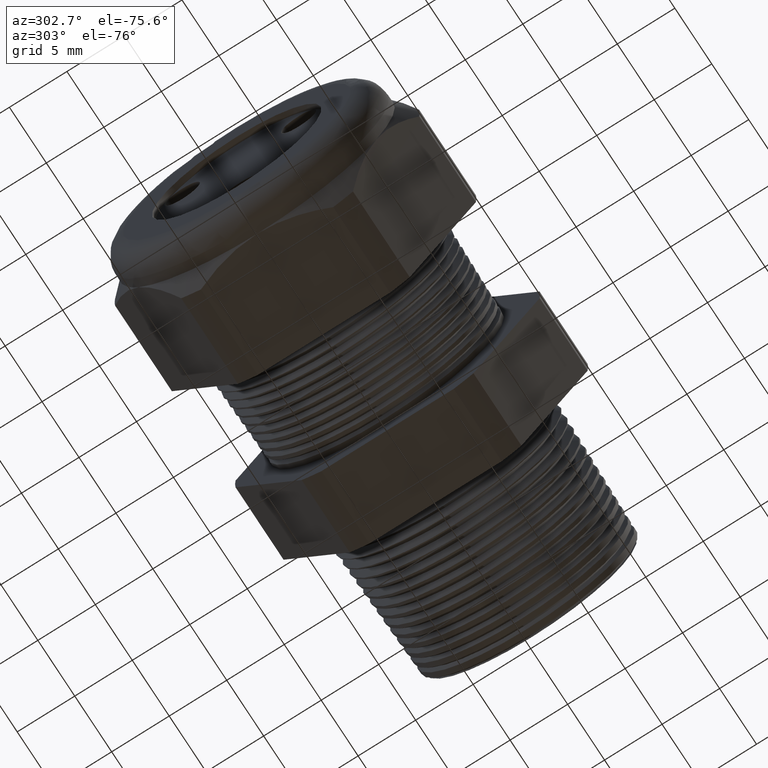
[diagram: clean part render]
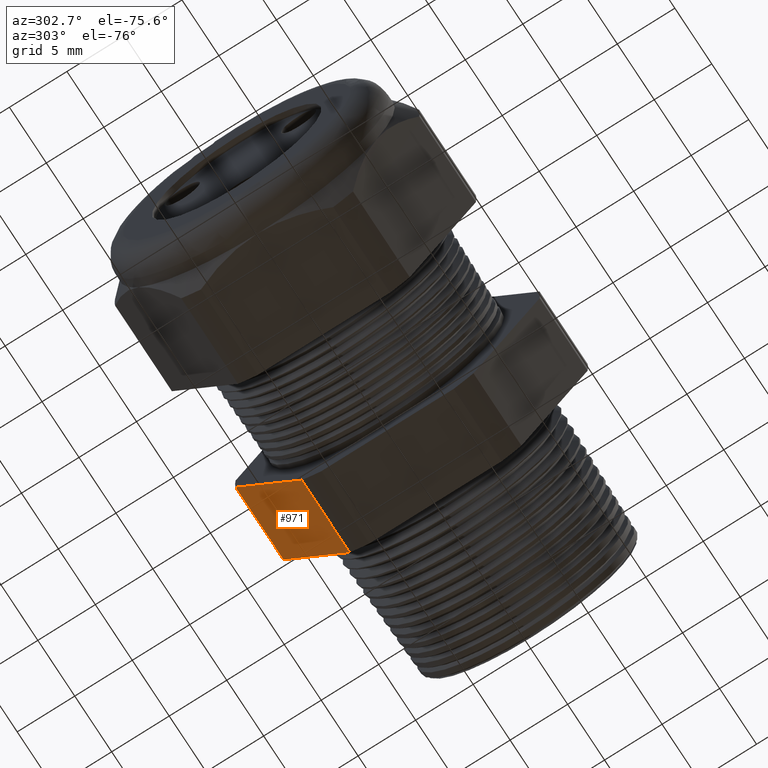
[diagram: same view with one face highlighted and labeled with its STEP entity id]
A machine part, auxiliary view. The second image highlights one B-rep face of the part: STEP entity #971.
In plain terms, the highlighted planar face has unit normal (0, 0.866, -0.5).
Its self-contained STEP definition (entity closure, byte-faithful):
#884 = VERTEX_POINT ( 'NONE', #3366 ) ;
#967 = EDGE_CURVE ( 'NONE', #968, #884, #3513, .T. ) ;
#968 = VERTEX_POINT ( 'NONE', #3509 ) ;
#971 = ADVANCED_FACE ( 'NONE', ( #3503 ), #3502, .T. ) ;
#972 = EDGE_LOOP ( 'NONE', ( #973, #1026, #1027, #1030 ) ) ;
#973 = ORIENTED_EDGE ( 'NONE', *, *, #974, .F. ) ;
#974 = EDGE_CURVE ( 'NONE', #884, #975, #3562, .T. ) ;
#975 = VERTEX_POINT ( 'NONE', #3558 ) ;
#1026 = ORIENTED_EDGE ( 'NONE', *, *, #967, .F. ) ;
#1027 = ORIENTED_EDGE ( 'NONE', *, *, #1028, .T. ) ;
#1028 = EDGE_CURVE ( 'NONE', #968, #1029, #3661, .T. ) ;
#1029 = VERTEX_POINT ( 'NONE', #3655 ) ;
#1030 = ORIENTED_EDGE ( 'NONE', *, *, #1031, .F. ) ;
#1031 = EDGE_CURVE ( 'NONE', #975, #1029, #3654, .T. ) ;
#3366 = CARTESIAN_POINT ( 'NONE',  ( -0.3100000000000000000, 0.5202473208008777700, -0.03890520787129494300 ) ) ;
#3498 = DIRECTION ( 'NONE',  ( 0.0000000000000000000, 0.4999999999999998300, 0.8660254037844388200 ) ) ;
#3499 = DIRECTION ( 'NONE',  ( 0.0000000000000000000, 0.8660254037844388200, -0.4999999999999998300 ) ) ;
#3500 = CARTESIAN_POINT ( 'NONE',  ( 0.2000000000000000400, 0.5202473208008777700, -0.03890520787129496400 ) ) ;
#3501 = AXIS2_PLACEMENT_3D ( 'NONE', #3500, #3499, #3498 ) ;
#3502 = PLANE ( 'NONE',  #3501 ) ;
#3503 = FACE_OUTER_BOUND ( 'NONE', #972, .T. ) ;
#3509 = CARTESIAN_POINT ( 'NONE',  ( -0.3100000000000000000, 0.2938165587564948700, -0.4310947921287048800 ) ) ;
#3510 = DIRECTION ( 'NONE',  ( 0.0000000000000000000, 0.4999999999999998300, 0.8660254037844388200 ) ) ;
#3511 = VECTOR ( 'NONE', #3510, 39.37007874015748100 ) ;
#3512 = CARTESIAN_POINT ( 'NONE',  ( -0.3100000000000000000, 0.6420319397786861100, 0.1720319397786860800 ) ) ;
#3513 = LINE ( 'NONE', #3512, #3511 ) ;
#3558 = CARTESIAN_POINT ( 'NONE',  ( -0.5659055118110235500, 0.5202473208008777700, -0.03890520787129496400 ) ) ;
#3559 = DIRECTION ( 'NONE',  ( -1.000000000000000000, 0.0000000000000000000, 0.0000000000000000000 ) ) ;
#3560 = VECTOR ( 'NONE', #3559, 39.37007874015748100 ) ;
#3561 = CARTESIAN_POINT ( 'NONE',  ( 0.2000000000000000400, 0.5202473208008777700, -0.03890520787129496400 ) ) ;
#3562 = LINE ( 'NONE', #3561, #3560 ) ;
#3651 = DIRECTION ( 'NONE',  ( 0.0000000000000000000, -0.4999999999999998300, -0.8660254037844388200 ) ) ;
#3652 = VECTOR ( 'NONE', #3651, 39.37007874015748100 ) ;
#3653 = CARTESIAN_POINT ( 'NONE',  ( -0.5659055118110235500, 0.6420319397786861100, 0.1720319397786860800 ) ) ;
#3654 = LINE ( 'NONE', #3653, #3652 ) ;
#3655 = CARTESIAN_POINT ( 'NONE',  ( -0.5659055118110235500, 0.2938165587564948700, -0.4310947921287048300 ) ) ;
#3656 = DIRECTION ( 'NONE',  ( -1.000000000000000000, 0.0000000000000000000, 0.0000000000000000000 ) ) ;
#3657 = VECTOR ( 'NONE', #3656, 39.37007874015748100 ) ;
#3658 = CARTESIAN_POINT ( 'NONE',  ( 0.2000000000000000400, 0.2938165587564948700, -0.4310947921287048800 ) ) ;
#3661 = LINE ( 'NONE', #3658, #3657 ) ;